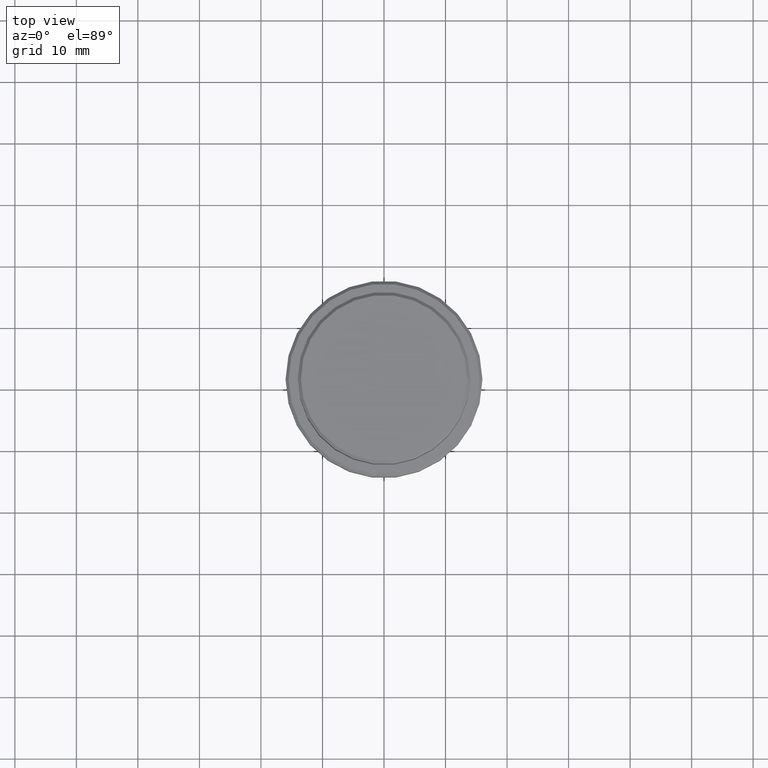
[diagram: clean part render]
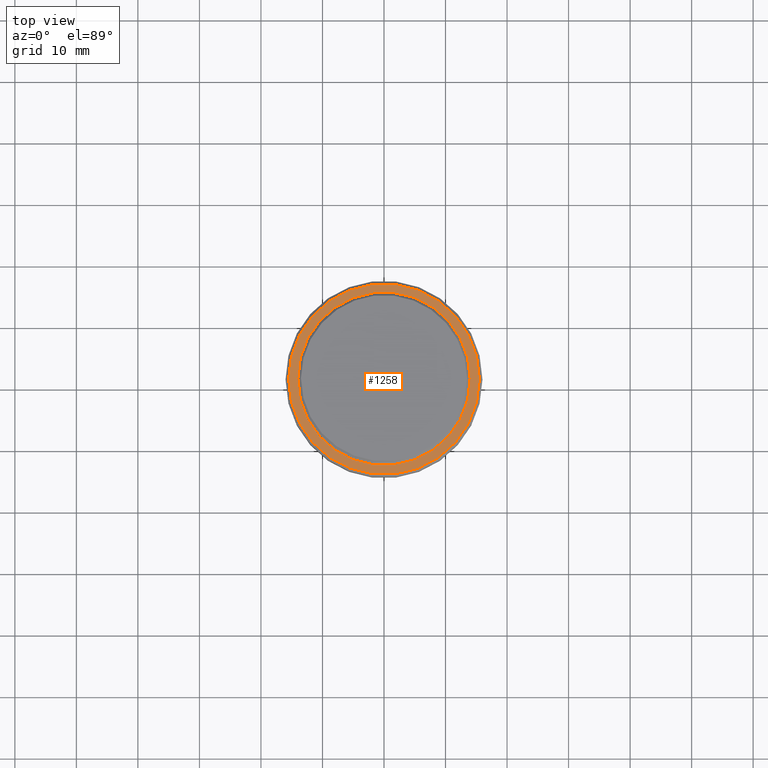
[diagram: same view with one face highlighted and labeled with its STEP entity id]
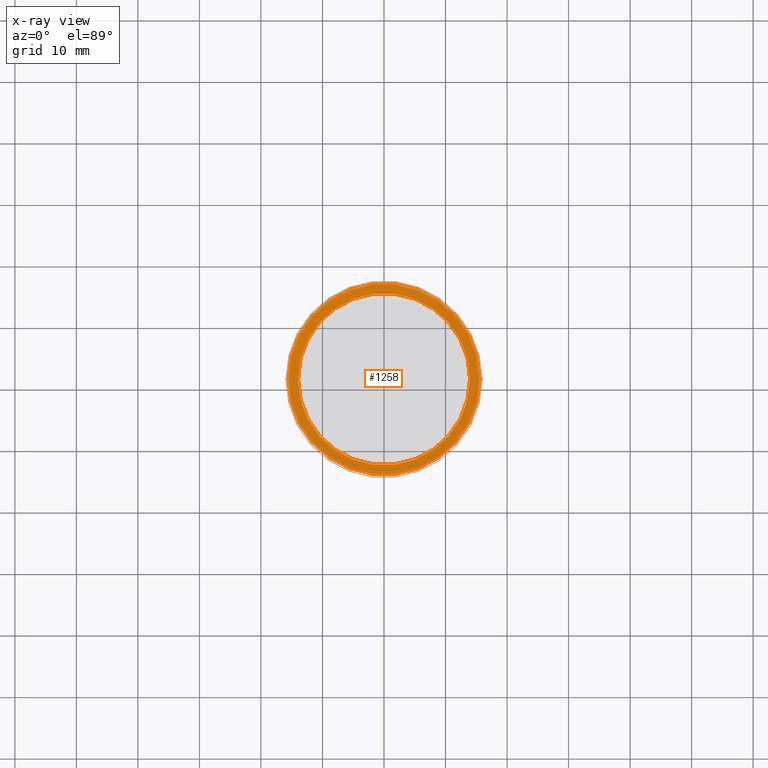
[diagram: x-ray of the same camera — body ghosted, the highlighted face saturated]
A machine part, top view. The second image highlights one B-rep face of the part: STEP entity #1258.
The next image is the same camera in x-ray: the body ghosted, the highlighted face saturated — about 0% of this face is hidden behind the body in this view.
In plain terms, the highlighted planar face has unit normal (0, -0, 1).
Its self-contained STEP definition (entity closure, byte-faithful):
#105 = CARTESIAN_POINT ( 'NONE',  ( 0.000000000000000000, 13.49999999999998579, -10.00000000000000178 ) ) ;
#171 = CARTESIAN_POINT ( 'NONE',  ( 0.000000000000000000, 0.000000000000000000, -10.00000000000000178 ) ) ;
#174 = ORIENTED_EDGE ( 'NONE', *, *, #261, .T. ) ;
#191 = CARTESIAN_POINT ( 'NONE',  ( 0.000000000000000000, 0.000000000000000000, -10.00000000000000178 ) ) ;
#203 = CARTESIAN_POINT ( 'NONE',  ( 0.000000000000000000, 0.000000000000000000, -10.00000000000000178 ) ) ;
#261 = EDGE_CURVE ( 'NONE', #923, #517, #975, .T. ) ;
#262 = CARTESIAN_POINT ( 'NONE',  ( -15.49999999999998579, 0.000000000000000000, -10.00000000000000178 ) ) ;
#272 = DIRECTION ( 'NONE',  ( 1.000000000000000000, 0.000000000000000000, 0.000000000000000000 ) ) ;
#279 = EDGE_LOOP ( 'NONE', ( #589, #898 ) ) ;
#282 = CARTESIAN_POINT ( 'NONE',  ( 0.000000000000000000, 0.000000000000000000, -10.00000000000000178 ) ) ;
#326 = FACE_OUTER_BOUND ( 'NONE', #1345, .T. ) ;
#359 = CARTESIAN_POINT ( 'NONE',  ( -13.99999999999998579, 1.714505518806292863E-15, -10.00000000000000178 ) ) ;
#375 = CARTESIAN_POINT ( 'NONE',  ( 15.49999999999998579, 1.928818708657080161E-15, -10.00000000000000178 ) ) ;
#410 = DIRECTION ( 'NONE',  ( 1.000000000000000000, 0.000000000000000000, 0.000000000000000000 ) ) ;
#426 = EDGE_CURVE ( 'NONE', #517, #923, #759, .T. ) ;
#440 = AXIS2_PLACEMENT_3D ( 'NONE', #171, #508, #613 ) ;
#499 = DIRECTION ( 'NONE',  ( -0.000000000000000000, -0.000000000000000000, 1.000000000000000000 ) ) ;
#500 = AXIS2_PLACEMENT_3D ( 'NONE', #203, #523, #977 ) ;
#508 = DIRECTION ( 'NONE',  ( 0.000000000000000000, 0.000000000000000000, -1.000000000000000000 ) ) ;
#514 = DIRECTION ( 'NONE',  ( 0.000000000000000000, 0.000000000000000000, -1.000000000000000000 ) ) ;
#517 = VERTEX_POINT ( 'NONE', #262 ) ;
#523 = DIRECTION ( 'NONE',  ( -0.000000000000000000, -0.000000000000000000, 1.000000000000000000 ) ) ;
#583 = ORIENTED_EDGE ( 'NONE', *, *, #426, .T. ) ;
#589 = ORIENTED_EDGE ( 'NONE', *, *, #998, .T. ) ;
#613 = DIRECTION ( 'NONE',  ( 1.000000000000000000, 0.000000000000000000, 0.000000000000000000 ) ) ;
#646 = EDGE_CURVE ( 'NONE', #963, #999, #1045, .T. ) ;
#744 = DIRECTION ( 'NONE',  ( 1.000000000000000000, 0.000000000000000000, 0.000000000000000000 ) ) ;
#759 = CIRCLE ( 'NONE', #949, 15.49999999999998579 ) ;
#761 = FACE_BOUND ( 'NONE', #279, .T. ) ;
#789 = CIRCLE ( 'NONE', #440, 13.99999999999998579 ) ;
#853 = PLANE ( 'NONE',  #1346 ) ;
#898 = ORIENTED_EDGE ( 'NONE', *, *, #646, .T. ) ;
#923 = VERTEX_POINT ( 'NONE', #375 ) ;
#949 = AXIS2_PLACEMENT_3D ( 'NONE', #282, #499, #410 ) ;
#963 = VERTEX_POINT ( 'NONE', #359 ) ;
#975 = CIRCLE ( 'NONE', #500, 15.49999999999998579 ) ;
#977 = DIRECTION ( 'NONE',  ( 1.000000000000000000, 0.000000000000000000, 0.000000000000000000 ) ) ;
#998 = EDGE_CURVE ( 'NONE', #999, #963, #789, .T. ) ;
#999 = VERTEX_POINT ( 'NONE', #1076 ) ;
#1045 = CIRCLE ( 'NONE', #1190, 13.99999999999998579 ) ;
#1076 = CARTESIAN_POINT ( 'NONE',  ( 13.99999999999998579, 0.000000000000000000, -10.00000000000000178 ) ) ;
#1190 = AXIS2_PLACEMENT_3D ( 'NONE', #191, #514, #272 ) ;
#1258 = ADVANCED_FACE ( 'NONE', ( #326, #761 ), #853, .T. ) ;
#1287 = DIRECTION ( 'NONE',  ( 0.000000000000000000, -0.000000000000000000, 1.000000000000000000 ) ) ;
#1345 = EDGE_LOOP ( 'NONE', ( #583, #174 ) ) ;
#1346 = AXIS2_PLACEMENT_3D ( 'NONE', #105, #1287, #744 ) ;